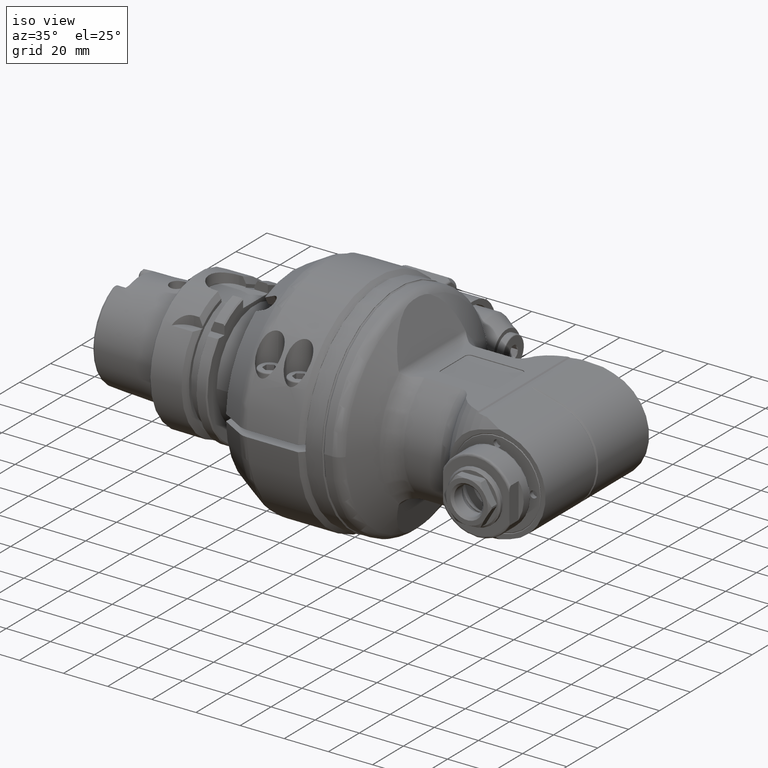
[diagram: clean part render]
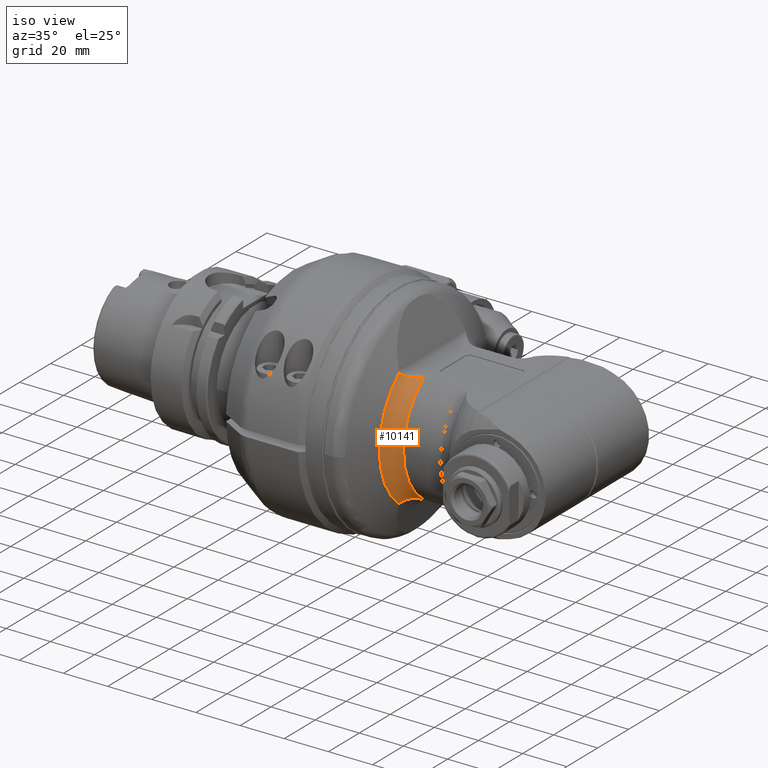
[diagram: same view with one face highlighted and labeled with its STEP entity id]
A machine part, iso view. The second image highlights one B-rep face of the part: STEP entity #10141.
In plain terms, the highlighted toroidal blend (fillet) surface has major radius 39 mm and minor (blend) radius 9 mm.
Its self-contained STEP definition (entity closure, byte-faithful):
#85=B_SPLINE_CURVE_WITH_KNOTS('',3,(#15338,#15339,#15340,#15341,#15342,
#15343,#15344,#15345),.UNSPECIFIED.,.F.,.F.,(4,2,2,4),(2.68007420425724,
2.85940536172762,3.00882891197884,3.1423743118532),.UNSPECIFIED.);
#90=B_SPLINE_CURVE_WITH_KNOTS('',3,(#15446,#15447,#15448,#15449,#15450,
#15451,#15452,#15453,#15454,#15455),.UNSPECIFIED.,.F.,.F.,(4,2,2,2,4),(-6.59385884259077,
-6.58447781946137,-6.47340065523039,-6.2760815842723,-6.12835446151607),
 .UNSPECIFIED.);
#97=B_SPLINE_CURVE_WITH_KNOTS('',3,(#15532,#15533,#15534,#15535,#15536,
#15537,#15538,#15539,#15540,#15541),.UNSPECIFIED.,.F.,.F.,(4,2,2,2,4),(3.59658856200034,
3.62659865115053,3.73684578082164,3.89042704672828,3.98683363644943),
 .UNSPECIFIED.);
#100=B_SPLINE_CURVE_WITH_KNOTS('',3,(#15800,#15801,#15802,#15803,#15804,
#15805,#15806,#15807),.UNSPECIFIED.,.F.,.F.,(4,2,2,4),(3.1423743118532,
3.27591971172755,3.42534326197877,3.60467441944328),.UNSPECIFIED.);
#231=TOROIDAL_SURFACE('',#11107,39.,9.);
#2253=FACE_OUTER_BOUND('',#2901,.T.);
#2901=EDGE_LOOP('',(#7018,#7019,#7020,#7021,#7022,#7023));
#3521=CIRCLE('',#10977,34.5);
#3589=CIRCLE('',#11105,30.);
#4063=VERTEX_POINT('',#15334);
#4065=VERTEX_POINT('',#15337);
#4087=VERTEX_POINT('',#15437);
#4091=VERTEX_POINT('',#15491);
#4098=VERTEX_POINT('',#15530);
#4174=VERTEX_POINT('',#15797);
#5097=EDGE_CURVE('',#4063,#4065,#85,.T.);
#5121=EDGE_CURVE('',#4087,#4063,#90,.T.);
#5128=EDGE_CURVE('',#4087,#4091,#3521,.T.);
#5136=EDGE_CURVE('',#4091,#4098,#97,.T.);
#5246=EDGE_CURVE('',#4174,#4098,#100,.T.);
#5273=EDGE_CURVE('',#4174,#4065,#3589,.T.);
#7018=ORIENTED_EDGE('',*,*,#5273,.T.);
#7019=ORIENTED_EDGE('',*,*,#5097,.F.);
#7020=ORIENTED_EDGE('',*,*,#5121,.F.);
#7021=ORIENTED_EDGE('',*,*,#5128,.T.);
#7022=ORIENTED_EDGE('',*,*,#5136,.T.);
#7023=ORIENTED_EDGE('',*,*,#5246,.F.);
#10141=ADVANCED_FACE('',(#2253),#231,.F.);
#10977=AXIS2_PLACEMENT_3D('',#15501,#12323,#12324);
#11105=AXIS2_PLACEMENT_3D('',#15920,#12637,#12638);
#11107=AXIS2_PLACEMENT_3D('',#15922,#12641,#12642);
#12323=DIRECTION('center_axis',(1.,0.,0.));
#12324=DIRECTION('ref_axis',(0.,-1.,0.));
#12637=DIRECTION('center_axis',(-1.,0.,0.));
#12638=DIRECTION('ref_axis',(0.,-1.,0.));
#12641=DIRECTION('center_axis',(-1.,0.,0.));
#12642=DIRECTION('ref_axis',(0.,-1.,-1.22464679914735E-16));
#15334=CARTESIAN_POINT('',(30.80083019732,-18.54823604147,25.00000000001));
#15337=CARTESIAN_POINT('',(35.16580758197,-16.58312395178,25.));
#15338=CARTESIAN_POINT('Ctrl Pts',(30.800830197335,-18.5482360414862,25.));
#15339=CARTESIAN_POINT('Ctrl Pts',(31.2768824718462,-18.1051437660546,25.));
#15340=CARTESIAN_POINT('Ctrl Pts',(31.7927287077257,-17.7134498027612,25.));
#15341=CARTESIAN_POINT('Ctrl Pts',(32.7382766269785,-17.1595326432425,25.));
#15342=CARTESIAN_POINT('Ctrl Pts',(33.2844305992261,-16.9167277905047,25.));
#15343=CARTESIAN_POINT('Ctrl Pts',(34.1920196550243,-16.6598919965139,25.));
#15344=CARTESIAN_POINT('Ctrl Pts',(34.7206562490555,-16.583123951777,25.));
#15345=CARTESIAN_POINT('Ctrl Pts',(35.16580758197,-16.583123951777,25.));
#15437=CARTESIAN_POINT('',(27.37157894791,-21.55092563199,26.94081669891));
#15446=CARTESIAN_POINT('Ctrl Pts',(27.3715789479245,-21.5509256318922,26.9408166989593));
#15447=CARTESIAN_POINT('Ctrl Pts',(27.3832154280211,-21.5428857417657,26.9214379414238));
#15448=CARTESIAN_POINT('Ctrl Pts',(27.3949674921055,-21.5345874428463,26.902239004249));
#15449=CARTESIAN_POINT('Ctrl Pts',(27.5472100386132,-21.425040439272,26.658135080755));
#15450=CARTESIAN_POINT('Ctrl Pts',(27.7176933102897,-21.280522285381,26.4344728475626));
#15451=CARTESIAN_POINT('Ctrl Pts',(28.2887044363584,-20.7807655001042,25.8431255043235));
#15452=CARTESIAN_POINT('Ctrl Pts',(28.7791301612318,-20.342597000736,25.488301742797));
#15453=CARTESIAN_POINT('Ctrl Pts',(29.8381138706679,-19.4155756278872,25.0874310035156));
#15454=CARTESIAN_POINT('Ctrl Pts',(30.3182108619809,-18.9974407001051,25.0000000000199));
#15455=CARTESIAN_POINT('Ctrl Pts',(30.800830197335,-18.5482360414862,25.));
#15491=CARTESIAN_POINT('',(27.37157894791,-21.55092563191,-26.94081669898));
#15501=CARTESIAN_POINT('Origin',(27.37157894791,0.,0.));
#15530=CARTESIAN_POINT('',(30.80083019737,-18.54823604143,-25.00000000001));
#15532=CARTESIAN_POINT('Ctrl Pts',(27.3715789479101,-21.5509256319022,-26.9408166989833));
#15533=CARTESIAN_POINT('Ctrl Pts',(27.4208401335489,-21.5168900372258,-26.8587798145909));
#15534=CARTESIAN_POINT('Ctrl Pts',(27.4721031814978,-21.4782962654302,-26.7801091443261));
#15535=CARTESIAN_POINT('Ctrl Pts',(27.7169404273544,-21.2852548148025,-26.4305321262481));
#15536=CARTESIAN_POINT('Ctrl Pts',(27.9572399572632,-21.0717129154017,-26.1620004341279));
#15537=CARTESIAN_POINT('Ctrl Pts',(28.6466925231107,-20.4603252622371,-25.5894490369269));
#15538=CARTESIAN_POINT('Ctrl Pts',(29.1461486309401,-20.0224758800888,-25.3103999101667));
#15539=CARTESIAN_POINT('Ctrl Pts',(30.0745482205551,-19.2074224565158,-25.0489408116075));
#15540=CARTESIAN_POINT('Ctrl Pts',(30.43928272816,-18.8847513768008,-25.0000000000107));
#15541=CARTESIAN_POINT('Ctrl Pts',(30.8008301973818,-18.5482360414427,-25.));
#15797=CARTESIAN_POINT('',(35.16580758197,-16.58312395178,-25.));
#15800=CARTESIAN_POINT('Ctrl Pts',(35.16580758197,-16.583123951777,-25.));
#15801=CARTESIAN_POINT('Ctrl Pts',(34.7206562490555,-16.583123951777,-25.));
#15802=CARTESIAN_POINT('Ctrl Pts',(34.1920196550243,-16.6598919965139,-25.));
#15803=CARTESIAN_POINT('Ctrl Pts',(33.2844305992261,-16.9167277905047,-25.));
#15804=CARTESIAN_POINT('Ctrl Pts',(32.7382766269785,-17.1595326432425,-25.));
#15805=CARTESIAN_POINT('Ctrl Pts',(31.7927287077426,-17.7134498027513,-25.));
#15806=CARTESIAN_POINT('Ctrl Pts',(31.2768824718798,-18.1051437660289,-25.));
#15807=CARTESIAN_POINT('Ctrl Pts',(30.8008301973818,-18.5482360414427,-25.));
#15920=CARTESIAN_POINT('Origin',(35.16580758197,0.,0.));
#15922=CARTESIAN_POINT('Origin',(35.16580758197,0.,0.));